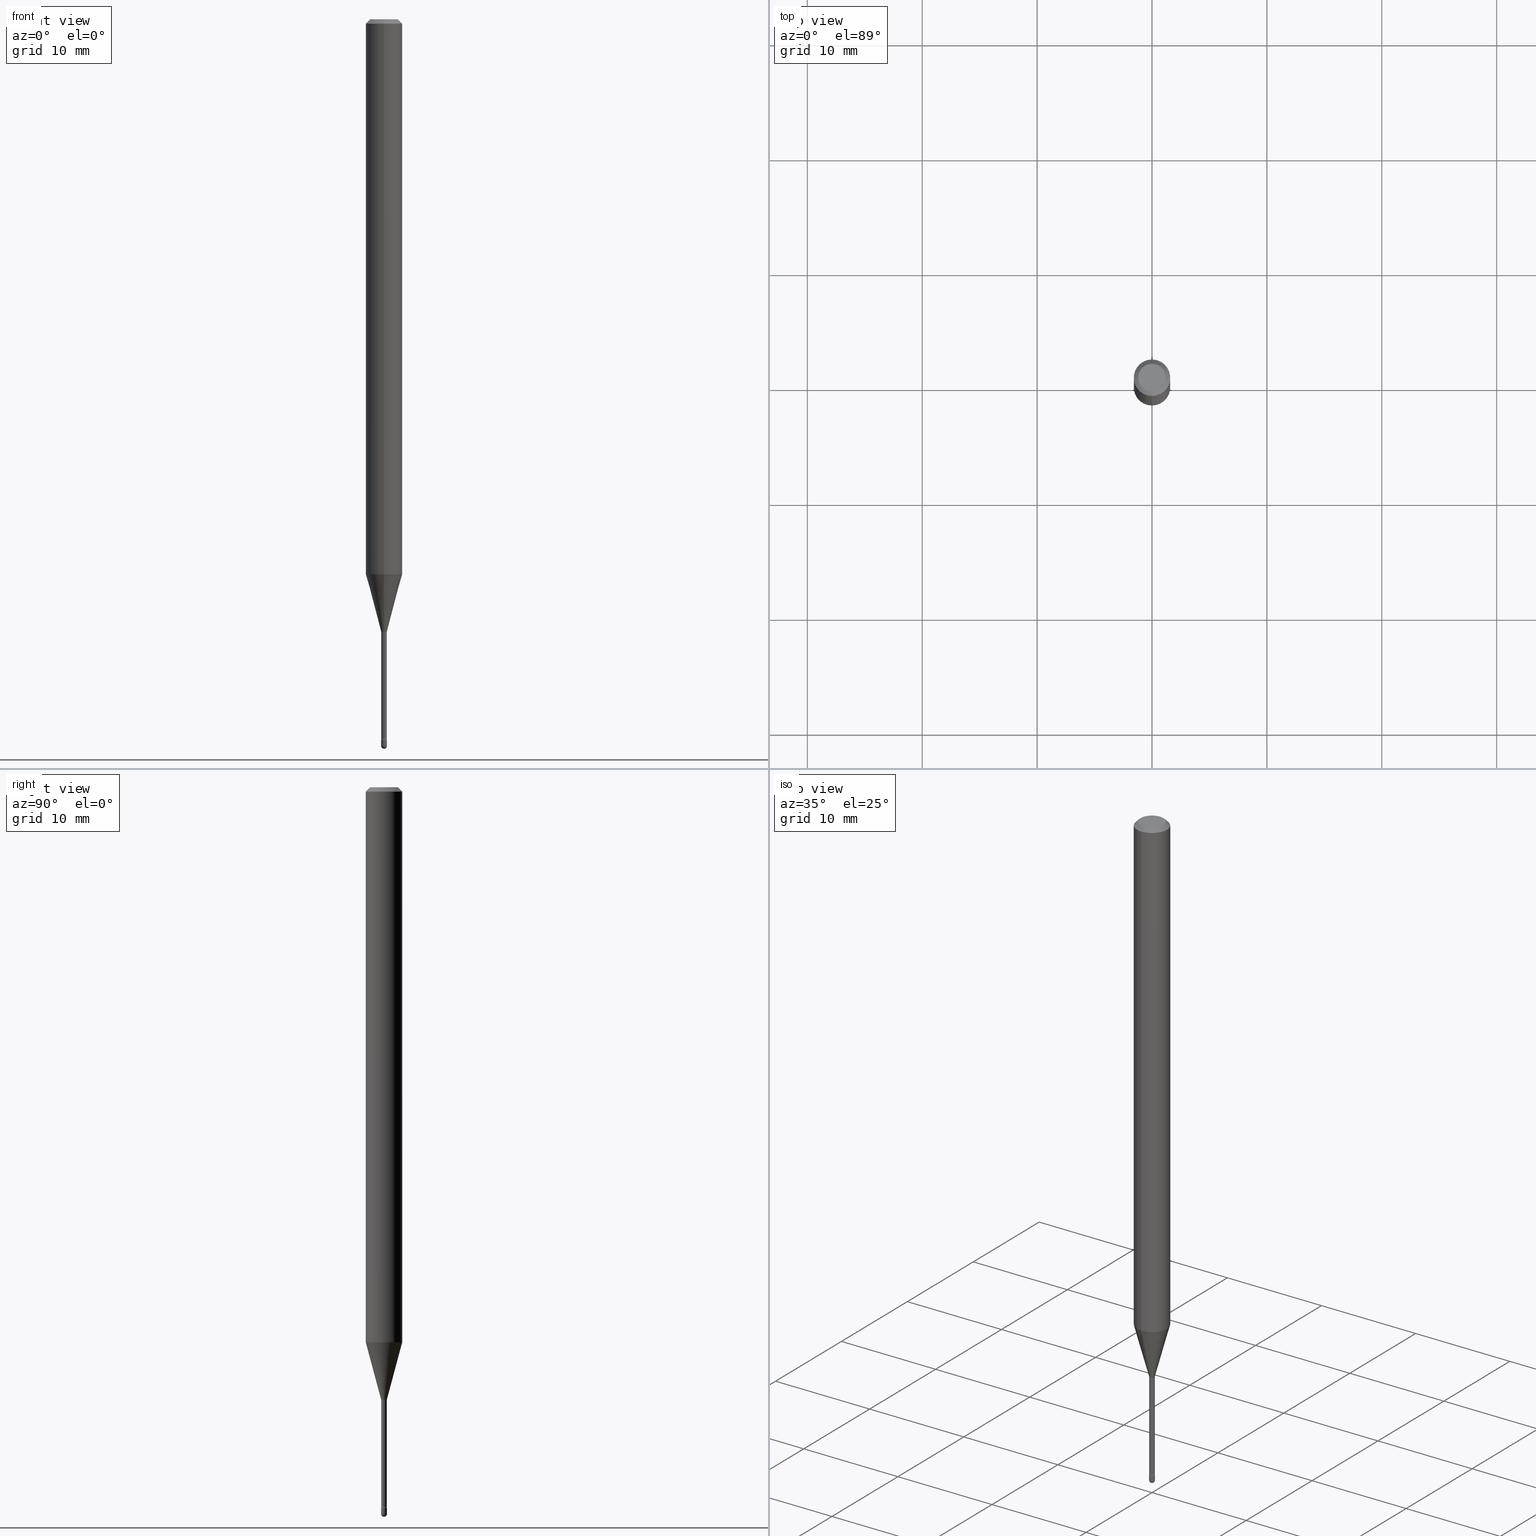
[diagram: canonical four-view strip — front | top / right | iso, engineering-drawing reading convention]
A machine part, canonical four-view strip (front | top / right | iso — engineering-drawing reading convention). The complete STEP part file that produces these views, byte-faithful:
ISO-10303-21;
HEADER;
FILE_DESCRIPTION (( 'STEP AP203' ),
    '1' );
FILE_NAME ('09422.STEP',
    '2024-04-09T22:58:47',
    ( '' ),
    ( '' ),
    'SwSTEP 2.0',
    'SolidWorks 2023',
    '' );
FILE_SCHEMA (( 'CONFIG_CONTROL_DESIGN' ));
ENDSEC;

DATA;
#1 = PLANE ( 'NONE',  #214 ) ;
#2 = ADVANCED_FACE ( 'NONE', ( #287 ), #88, .T. ) ;
#3 = CARTESIAN_POINT ( 'NONE',  ( -0.01000000000000000021, 7.105427357601002007E-17, -4.918935090254906272E-31 ) ) ;
#4 = VECTOR ( 'NONE', #510, 39.37007874015748143 ) ;
#5 = ADVANCED_FACE ( 'NONE', ( #208 ), #33, .F. ) ;
#6 = DIRECTION ( 'NONE',  ( -2.445514680004829566E-29, 3.491415644922369221E-15, 1.000000000000000000 ) ) ;
#7 = ORIENTED_EDGE ( 'NONE', *, *, #456, .T. ) ;
#8 = ADVANCED_BREP_SHAPE_REPRESENTATION ( '09422', ( #106, #111, #331 ), #453 ) ;
#9 = CARTESIAN_POINT ( 'NONE',  ( -1.703842893354847853E-16, -0.02440000000000863700, -2.465800000000000214 ) ) ;
#10 = EDGE_CURVE ( 'NONE', #562, #392, #493, .T. ) ;
#11 = ORIENTED_EDGE ( 'NONE', *, *, #309, .F. ) ;
#12 = CALENDAR_DATE ( 2024, 9, 4 ) ;
#13 = CARTESIAN_POINT ( 'NONE',  ( -4.287811248607203282E-16, -0.06250000000000005551, -0.01499999999999986587 ) ) ;
#14 = DIRECTION ( 'NONE',  ( -2.445514680004829566E-29, 3.491415644922369221E-15, 1.000000000000000000 ) ) ;
#15 = SECURITY_CLASSIFICATION ( '', '', #92 ) ;
#16 = FACE_OUTER_BOUND ( 'NONE', #295, .T. ) ;
#17 = ORIENTED_EDGE ( 'NONE', *, *, #239, .T. ) ;
#18 = DATE_TIME_ROLE ( 'creation_date' ) ;
#19 = CARTESIAN_POINT ( 'NONE',  ( 6.030036982291310238E-29, -8.609294685319429365E-15, -2.465800000000000214 ) ) ;
#20 = ORIENTED_EDGE ( 'NONE', *, *, #128, .F. ) ;
#21 = DIRECTION ( 'NONE',  ( -6.982962677686264344E-15, -1.000000000000000000, 0.000000000000000000 ) ) ;
#22 = CC_DESIGN_PERSON_AND_ORGANIZATION_ASSIGNMENT ( #495, #113, ( #45 ) ) ;
#23 = CIRCLE ( 'NONE', #178, 0.01000000000000000021 ) ;
#24 = CIRCLE ( 'NONE', #505, 0.009400000000000002104 ) ;
#25 = VECTOR ( 'NONE', #265, 39.37007874015748854 ) ;
#26 = FACE_OUTER_BOUND ( 'NONE', #134, .T. ) ;
#27 = DIRECTION ( 'NONE',  ( -2.445514680004829566E-29, 3.491415644922369221E-15, 1.000000000000000000 ) ) ;
#28 = ORIENTED_EDGE ( 'NONE', *, *, #162, .T. ) ;
#29 = LINE ( 'NONE', #201, #124 ) ;
#30 = EDGE_CURVE ( 'NONE', #144, #437, #294, .T. ) ;
#31 = CARTESIAN_POINT ( 'NONE',  ( -4.364351673553451266E-16, -0.06250000000000664746, -1.901828102118092945 ) ) ;
#32 = VERTEX_POINT ( 'NONE', #539 ) ;
#33 = PLANE ( 'NONE',  #457 ) ;
#34 = AXIS2_PLACEMENT_3D ( 'NONE', #46, #169, #535 ) ;
#35 = DIRECTION ( 'NONE',  ( -6.982962677686265922E-15, -1.000000000000000000, 0.000000000000000000 ) ) ;
#36 = PRODUCT_DEFINITION_FORMATION_WITH_SPECIFIED_SOURCE ( 'ANY', '', #492, .NOT_KNOWN. ) ;
#37 = CIRCLE ( 'NONE', #420, 0.01000000000000008347 ) ;
#38 = EDGE_CURVE ( 'NONE', #356, #562, #61, .T. ) ;
#39 = EDGE_LOOP ( 'NONE', ( #327, #553 ) ) ;
#40 = VERTEX_POINT ( 'NONE', #181 ) ;
#41 = FACE_OUTER_BOUND ( 'NONE', #288, .T. ) ;
#42 = EDGE_CURVE ( 'NONE', #58, #541, #256, .T. ) ;
#43 = DIRECTION ( 'NONE',  ( -7.105427357601000281E-15, -1.000000000000000000, 0.000000000000000000 ) ) ;
#44 = CARTESIAN_POINT ( 'NONE',  ( 6.089217327400989947E-29, -8.693788533719431716E-15, -2.489999999999999769 ) ) ;
#45 = PRODUCT_DEFINITION ( 'UNKNOWN', '', #36, #180 ) ;
#46 = CARTESIAN_POINT ( 'NONE',  ( 1.733724275255249028E-16, 0.02439999999999141814, -2.465800000000000214 ) ) ;
#47 = AXIS2_PLACEMENT_3D ( 'NONE', #252, #50, #382 ) ;
#48 = VERTEX_POINT ( 'NONE', #220 ) ;
#49 = VECTOR ( 'NONE', #522, 39.37007874015748143 ) ;
#50 = DIRECTION ( 'NONE',  ( -2.445514680004829566E-29, 3.491415644922369221E-15, 1.000000000000000000 ) ) ;
#51 = DIRECTION ( 'NONE',  ( -6.982962677686265922E-15, -1.000000000000000000, 3.491415644922369221E-15 ) ) ;
#52 = CARTESIAN_POINT ( 'NONE',  ( 3.668272020007264791E-31, -5.237123467383583267E-17, -0.01500000000000008271 ) ) ;
#53 = FACE_OUTER_BOUND ( 'NONE', #414, .T. ) ;
#54 = ORIENTED_EDGE ( 'NONE', *, *, #503, .T. ) ;
#55 = DIRECTION ( 'NONE',  ( 1.000000000000000000, -6.982962677686235945E-15, 0.000000000000000000 ) ) ;
#56 = ORIENTED_EDGE ( 'NONE', *, *, #206, .T. ) ;
#57 = CARTESIAN_POINT ( 'NONE',  ( 2.023886438444584858E-45, -2.888837706566762205E-31, -8.275015253278219790E-17 ) ) ;
#58 = VERTEX_POINT ( 'NONE', #102 ) ;
#59 = AXIS2_PLACEMENT_3D ( 'NONE', #107, #496, #179 ) ;
#60 = LOCAL_TIME ( 18, 58, 47.00000000000000000, #542 ) ;
#61 = LINE ( 'NONE', #484, #511 ) ;
#62 = ORIENTED_EDGE ( 'NONE', *, *, #110, .T. ) ;
#63 = COORDINATED_UNIVERSAL_TIME_OFFSET ( 5, 0, .BEHIND. ) ;
#64 = PERSON_AND_ORGANIZATION ( #474, #164 ) ;
#65 = APPROVAL_STATUS ( 'not_yet_approved' ) ;
#66 = APPLICATION_CONTEXT ( 'configuration controlled 3d designs of mechanical parts and assemblies' ) ;
#67 = APPROVAL_DATE_TIME ( #445, #378 ) ;
#68 = CIRCLE ( 'NONE', #142, 0.01000000000000000021 ) ;
#69 = EDGE_CURVE ( 'NONE', #526, #450, #135, .T. ) ;
#70 = APPROVAL ( #226, 'UNSPECIFIED' ) ;
#71 = ORIENTED_EDGE ( 'NONE', *, *, #324, .F. ) ;
#72 = EDGE_CURVE ( 'NONE', #437, #182, #148, .T. ) ;
#73 = CONICAL_SURFACE ( 'NONE', #261, 0.009911112605663983943, 0.2617993877991500740 ) ;
#74 = CIRCLE ( 'NONE', #155, 0.06250000000000000000 ) ;
#75 = CARTESIAN_POINT ( 'NONE',  ( 6.040421259611930153E-29, -8.623796642958253681E-15, -2.470000000000000195 ) ) ;
#76 = ORIENTED_EDGE ( 'NONE', *, *, #10, .F. ) ;
#77 = DIRECTION ( 'NONE',  ( -6.982962677686265922E-15, -1.000000000000000000, 3.483106191921935554E-15 ) ) ;
#78 = EDGE_CURVE ( 'NONE', #156, #160, #212, .T. ) ;
#79 = CARTESIAN_POINT ( 'NONE',  ( 3.840629472727447874E-16, 0.04749999999999999362, -2.485923956665947374E-16 ) ) ;
#80 = EDGE_LOOP ( 'NONE', ( #277, #444 ) ) ;
#81 = DIRECTION ( 'NONE',  ( -6.982962677686265922E-15, -1.000000000000000000, 0.000000000000000000 ) ) ;
#82 = CARTESIAN_POINT ( 'NONE',  ( -6.563984917025098705E-17, -0.009400000000000012512, 5.108927059535164015E-16 ) ) ;
#83 = DIRECTION ( 'NONE',  ( 6.982962677686265922E-15, 1.000000000000000000, 0.000000000000000000 ) ) ;
#84 = ORIENTED_EDGE ( 'NONE', *, *, #78, .T. ) ;
#85 = CIRCLE ( 'NONE', #176, 0.01500000000000002373 ) ;
#86 = DIRECTION ( 'NONE',  ( -2.445514680004829566E-29, 3.491415644922369221E-15, 1.000000000000000000 ) ) ;
#87 = CARTESIAN_POINT ( 'NONE',  ( 0.000000000000000000, 0.000000000000000000, 0.000000000000000000 ) ) ;
#88 = SPHERICAL_SURFACE ( 'NONE', #543, 0.01000000000000008347 ) ;
#89 = CARTESIAN_POINT ( 'NONE',  ( -7.105427357594942569E-17, -0.01000000000000873281, -2.489999999999999769 ) ) ;
#90 = ADVANCED_FACE ( 'NONE', ( #473 ), #1, .T. ) ;
#91 = ORIENTED_EDGE ( 'NONE', *, *, #411, .F. ) ;
#92 = SECURITY_CLASSIFICATION_LEVEL ( 'unclassified' ) ;
#93 = CARTESIAN_POINT ( 'NONE',  ( -1.169113584055446105E-44, 1.669184350826100908E-30, 4.780733988912460139E-16 ) ) ;
#94 = CARTESIAN_POINT ( 'NONE',  ( 6.040307951277287977E-29, -8.623958906942569995E-15, -2.470000000000000195 ) ) ;
#95 = LOCAL_TIME ( 18, 58, 47.00000000000000000, #141 ) ;
#96 = EDGE_LOOP ( 'NONE', ( #523, #363, #313, #500 ) ) ;
#97 = DIRECTION ( 'NONE',  ( -6.982962677686264344E-15, -1.000000000000000000, 0.000000000000000000 ) ) ;
#98 = CARTESIAN_POINT ( 'NONE',  ( -4.364351673553912750E-16, -0.06250000000000005551, -0.01499999999999986587 ) ) ;
#99 = CARTESIAN_POINT ( 'NONE',  ( -1.169113584055446105E-44, 1.669184350826100908E-30, 4.780733988912460139E-16 ) ) ;
#100 = CARTESIAN_POINT ( 'NONE',  ( 6.089217327400989947E-29, -8.693788533719431716E-15, -2.489999999999999769 ) ) ;
#101 = ORIENTED_EDGE ( 'NONE', *, *, #110, .F. ) ;
#102 = CARTESIAN_POINT ( 'NONE',  ( 0.01000000000000000021, -8.728703347107863365E-15, -2.489999999999999769 ) ) ;
#103 = CIRCLE ( 'NONE', #407, 0.01000000000000000021 ) ;
#104 = ORIENTED_EDGE ( 'NONE', *, *, #30, .F. ) ;
#105 = AXIS2_PLACEMENT_3D ( 'NONE', #518, #170, #514 ) ;
#106 = MANIFOLD_SOLID_BREP ( 'Body-Move/Copy2[1]', #390 ) ;
#107 = CARTESIAN_POINT ( 'NONE',  ( -1.169113584055446105E-44, 1.669184350826100908E-30, 4.780733988912460139E-16 ) ) ;
#108 = APPROVAL_ROLE ( '' ) ;
#109 = DIRECTION ( 'NONE',  ( -6.982962677686265922E-15, -1.000000000000000000, 3.491415644922369221E-15 ) ) ;
#110 = EDGE_CURVE ( 'NONE', #207, #541, #380, .T. ) ;
#111 = MANIFOLD_SOLID_BREP ( 'Body-Move/Copy2[2]', #368 ) ;
#112 = EDGE_LOOP ( 'NONE', ( #433, #177, #149, #423 ) ) ;
#113 = PERSON_AND_ORGANIZATION_ROLE ( 'creator' ) ;
#114 = EDGE_LOOP ( 'NONE', ( #301, #62 ) ) ;
#115 = AXIS2_PLACEMENT_3D ( 'NONE', #515, #137, #139 ) ;
#116 = ADVANCED_FACE ( 'NONE', ( #53 ), #308, .T. ) ;
#117 = AXIS2_PLACEMENT_3D ( 'NONE', #198, #325, #284 ) ;
#118 = ORIENTED_EDGE ( 'NONE', *, *, #555, .T. ) ;
#119 = CARTESIAN_POINT ( 'NONE',  ( 6.030150097955909922E-29, -8.609132697249580284E-15, -2.465800000000000214 ) ) ;
#120 = ORIENTED_EDGE ( 'NONE', *, *, #238, .T. ) ;
#121 = AXIS2_PLACEMENT_3D ( 'NONE', #428, #564, #525 ) ;
#122 = AXIS2_PLACEMENT_3D ( 'NONE', #52, #299, #253 ) ;
#123 = DIRECTION ( 'NONE',  ( -6.982962677686264344E-15, -1.000000000000000000, 0.000000000000000000 ) ) ;
#124 = VECTOR ( 'NONE', #557, 39.37007874015748143 ) ;
#125 = CARTESIAN_POINT ( 'NONE',  ( 6.089217327400989947E-29, -8.693788533719431716E-15, -2.489999999999999769 ) ) ;
#126 = CC_DESIGN_PERSON_AND_ORGANIZATION_ASSIGNMENT ( #193, #424, ( #36 ) ) ;
#127 = DIRECTION ( 'NONE',  ( -2.445514680004829566E-29, 3.491415644922369221E-15, 1.000000000000000000 ) ) ;
#128 = EDGE_CURVE ( 'NONE', #541, #207, #23, .T. ) ;
#129 =( NAMED_UNIT ( * ) PLANE_ANGLE_UNIT ( ) SI_UNIT ( $, .RADIAN. ) );
#130 = CARTESIAN_POINT ( 'NONE',  ( 4.650948542575521026E-29, -6.640072389688127985E-15, -1.901828102118093167 ) ) ;
#131 = CARTESIAN_POINT ( 'NONE',  ( -0.01000000000000000021, -8.587819446754991563E-15, -2.470000000000000195 ) ) ;
#132 = VECTOR ( 'NONE', #404, 39.37007874015748143 ) ;
#133 = DIRECTION ( 'NONE',  ( -2.445514680004829847E-29, 3.491415644922369221E-15, 1.000000000000000000 ) ) ;
#134 = EDGE_LOOP ( 'NONE', ( #469, #104, #372, #228 ) ) ;
#135 = CIRCLE ( 'NONE', #439, 0.01000000000000008347 ) ;
#136 = EDGE_CURVE ( 'NONE', #465, #403, #451, .T. ) ;
#137 = DIRECTION ( 'NONE',  ( -2.445514680004829566E-29, 3.491415644922369221E-15, 1.000000000000000000 ) ) ;
#138 = PERSON_AND_ORGANIZATION ( #474, #164 ) ;
#139 = DIRECTION ( 'NONE',  ( -6.982962677686265922E-15, -1.000000000000000000, 4.370956789862821150E-15 ) ) ;
#140 = ORIENTED_EDGE ( 'NONE', *, *, #38, .F. ) ;
#141 = COORDINATED_UNIVERSAL_TIME_OFFSET ( 5, 0, .BEHIND. ) ;
#142 = AXIS2_PLACEMENT_3D ( 'NONE', #75, #335, #35 ) ;
#143 = DIRECTION ( 'NONE',  ( -2.445468806185136597E-29, 3.491481338843145583E-15, 1.000000000000000000 ) ) ;
#144 = VERTEX_POINT ( 'NONE', #448 ) ;
#145 = CARTESIAN_POINT ( 'NONE',  ( 3.668272020007264791E-31, -5.237123467383583267E-17, -0.01500000000000008271 ) ) ;
#146 = DIRECTION ( 'NONE',  ( -2.445468806185136597E-29, 3.491481338843145583E-15, 1.000000000000000000 ) ) ;
#147 = ORIENTED_EDGE ( 'NONE', *, *, #72, .F. ) ;
#148 = LINE ( 'NONE', #225, #25 ) ;
#149 = ORIENTED_EDGE ( 'NONE', *, *, #183, .T. ) ;
#150 = DIRECTION ( 'NONE',  ( -2.445514680004829566E-29, 3.491415644922369221E-15, 1.000000000000000000 ) ) ;
#151 = AXIS2_PLACEMENT_3D ( 'NONE', #333, #127, #81 ) ;
#152 = ORIENTED_EDGE ( 'NONE', *, *, #381, .F. ) ;
#153 = AXIS2_PLACEMENT_3D ( 'NONE', #145, #172, #345 ) ;
#154 = CC_DESIGN_APPROVAL ( #378, ( #15 ) ) ;
#155 = AXIS2_PLACEMENT_3D ( 'NONE', #461, #458, #77 ) ;
#156 = VERTEX_POINT ( 'NONE', #249 ) ;
#157 = CIRCLE ( 'NONE', #115, 0.06250000000000000000 ) ;
#158 = EDGE_CURVE ( 'NONE', #144, #356, #430, .T. ) ;
#159 = DIRECTION ( 'NONE',  ( -6.982962677686265922E-15, -1.000000000000000000, 3.491415644922369221E-15 ) ) ;
#160 = VERTEX_POINT ( 'NONE', #89 ) ;
#161 = FACE_OUTER_BOUND ( 'NONE', #323, .T. ) ;
#162 = EDGE_CURVE ( 'NONE', #58, #450, #315, .T. ) ;
#163 = CARTESIAN_POINT ( 'NONE',  ( 5.140313774130382338E-29, -7.339005745148683013E-15, -2.101974787463810834 ) ) ;
#164 = ORGANIZATION ( 'UNSPECIFIED', 'UNSPECIFIED', '' ) ;
#165 = CARTESIAN_POINT ( 'NONE',  ( 5.140410199742781456E-29, -7.338867658183522042E-15, -2.101974787463810834 ) ) ;
#166 = ORIENTED_EDGE ( 'NONE', *, *, #324, .T. ) ;
#167 = ADVANCED_FACE ( 'NONE', ( #161 ), #73, .T. ) ;
#168 = EDGE_CURVE ( 'NONE', #392, #562, #74, .T. ) ;
#169 = DIRECTION ( 'NONE',  ( 1.000000000000000000, -7.105427357601001070E-15, 4.926314704023584056E-29 ) ) ;
#170 = DIRECTION ( 'NONE',  ( -2.445514680004829566E-29, 3.491415644922369221E-15, 1.000000000000000000 ) ) ;
#171 = CONICAL_SURFACE ( 'NONE', #438, 0.009911112605663983943, 0.2617993877991500740 ) ;
#172 = DIRECTION ( 'NONE',  ( 2.445514680004829566E-29, -3.491415644922369221E-15, -1.000000000000000000 ) ) ;
#173 = PERSON_AND_ORGANIZATION_ROLE ( 'classification_officer' ) ;
#174 = ORIENTED_EDGE ( 'NONE', *, *, #411, .T. ) ;
#175 = DIRECTION ( 'NONE',  ( 1.000000000000000000, -6.982962677686265922E-15, 4.876176775795935793E-29 ) ) ;
#176 = AXIS2_PLACEMENT_3D ( 'NONE', #269, #197, #552 ) ;
#177 = ORIENTED_EDGE ( 'NONE', *, *, #559, .F. ) ;
#178 = AXIS2_PLACEMENT_3D ( 'NONE', #355, #143, #436 ) ;
#179 = DIRECTION ( 'NONE',  ( -6.982962677686265922E-15, -1.000000000000000000, 3.491415644922366460E-15 ) ) ;
#180 = DESIGN_CONTEXT ( 'detailed design', #546, 'design' ) ;
#181 = CARTESIAN_POINT ( 'NONE',  ( 7.105427357607040490E-17, 0.009999999999991376898, -2.470000000000000195 ) ) ;
#182 = VERTEX_POINT ( 'NONE', #412 ) ;
#183 = EDGE_CURVE ( 'NONE', #403, #392, #29, .T. ) ;
#184 = EDGE_CURVE ( 'NONE', #32, #410, #340, .T. ) ;
#185 = ORIENTED_EDGE ( 'NONE', *, *, #365, .T. ) ;
#186 = PERSON_AND_ORGANIZATION ( #474, #164 ) ;
#187 = DIRECTION ( 'NONE',  ( -4.851104656540964275E-15, -0.7071067811865500152, -0.7071067811865450192 ) ) ;
#188 = VECTOR ( 'NONE', #477, 39.37007874015748143 ) ;
#189 = LOCAL_TIME ( 18, 58, 47.00000000000000000, #361 ) ;
#190 = APPLICATION_PROTOCOL_DEFINITION ( 'international standard', 'config_control_design', 1994, #546 ) ;
#191 = DIRECTION ( 'NONE',  ( -2.445514680004829566E-29, 3.491415644922369221E-15, 1.000000000000000000 ) ) ;
#192 = ORIENTED_EDGE ( 'NONE', *, *, #258, .T. ) ;
#193 = PERSON_AND_ORGANIZATION ( #474, #164 ) ;
#194 = ORIENTED_EDGE ( 'NONE', *, *, #184, .F. ) ;
#195 = DIRECTION ( 'NONE',  ( -6.982962677686265922E-15, -1.000000000000000000, 0.000000000000000000 ) ) ;
#196 = AXIS2_PLACEMENT_3D ( 'NONE', #163, #499, #449 ) ;
#197 = DIRECTION ( 'NONE',  ( 1.000000000000000000, -7.105427357601001070E-15, 4.926314704023584056E-29 ) ) ;
#198 = CARTESIAN_POINT ( 'NONE',  ( 6.089217327400989947E-29, -8.693788533719431716E-15, -2.489999999999999769 ) ) ;
#199 = FACE_OUTER_BOUND ( 'NONE', #39, .T. ) ;
#200 = DIRECTION ( 'NONE',  ( -6.982962677686265922E-15, -1.000000000000000000, 4.370956789862821150E-15 ) ) ;
#201 = CARTESIAN_POINT ( 'NONE',  ( 4.364351673553919652E-16, 0.06249999999999995143, -0.01500000000000030129 ) ) ;
#202 = APPROVAL_PERSON_ORGANIZATION ( #64, #378, #108 ) ;
#203 = DIRECTION ( 'NONE',  ( -2.445468806185136597E-29, 3.491481338843145583E-15, 1.000000000000000000 ) ) ;
#204 =( NAMED_UNIT ( * ) SI_UNIT ( $, .STERADIAN. ) SOLID_ANGLE_UNIT ( ) );
#205 = DIRECTION ( 'NONE',  ( -6.982962677686265922E-15, -1.000000000000000000, 0.000000000000000000 ) ) ;
#206 = EDGE_CURVE ( 'NONE', #160, #58, #103, .T. ) ;
#207 = VERTEX_POINT ( 'NONE', #131 ) ;
#208 = FACE_OUTER_BOUND ( 'NONE', #80, .T. ) ;
#209 = DIMENSIONAL_EXPONENTS ( 1.000000000000000000, 0.000000000000000000, 0.000000000000000000, 0.000000000000000000, 0.000000000000000000, 0.000000000000000000, 0.000000000000000000 ) ;
#210 = CARTESIAN_POINT ( 'NONE',  ( 3.316907271900976096E-16, 0.04749999999999999362, 3.181938004541935619E-17 ) ) ;
#211 = CYLINDRICAL_SURFACE ( 'NONE', #489, 0.01000000000000000021 ) ;
#212 = CIRCLE ( 'NONE', #264, 0.01000000000000000021 ) ;
#213 = AXIS2_PLACEMENT_3D ( 'NONE', #286, #240, #159 ) ;
#214 = AXIS2_PLACEMENT_3D ( 'NONE', #94, #254, #432 ) ;
#215 = CARTESIAN_POINT ( 'NONE',  ( 6.089217327400989947E-29, -8.693788533719431716E-15, -2.489999999999999769 ) ) ;
#216 = CC_DESIGN_PERSON_AND_ORGANIZATION_ASSIGNMENT ( #421, #347, ( #492 ) ) ;
#217 = CARTESIAN_POINT ( 'NONE',  ( -6.982962677680226008E-17, -0.01000000000000862178, -2.470000000000000195 ) ) ;
#218 = CARTESIAN_POINT ( 'NONE',  ( 0.000000000000000000, 0.000000000000000000, 0.000000000000000000 ) ) ;
#219 = VERTEX_POINT ( 'NONE', #470 ) ;
#220 = CARTESIAN_POINT ( 'NONE',  ( 6.679101716150982958E-17, 0.009399999999992664224, -2.101974787463810834 ) ) ;
#221 = CONICAL_SURFACE ( 'NONE', #122, 0.06250000000000000000, 0.7853981633974483900 ) ;
#222 = LOCAL_TIME ( 18, 58, 47.00000000000000000, #63 ) ;
#223 = EDGE_LOOP ( 'NONE', ( #305, #84, #56, #266, #101 ) ) ;
#224 = ADVANCED_FACE ( 'NONE', ( #524 ), #211, .T. ) ;
#225 = CARTESIAN_POINT ( 'NONE',  ( 7.042269065260031004E-17, 0.009911112605656658206, -2.098092501787272912 ) ) ;
#226 = APPROVAL_STATUS ( 'not_yet_approved' ) ;
#227 = DATE_TIME_ROLE ( 'classification_date' ) ;
#228 = ORIENTED_EDGE ( 'NONE', *, *, #540, .T. ) ;
#229 = AXIS2_PLACEMENT_3D ( 'NONE', #119, #377, #195 ) ;
#230 = ADVANCED_FACE ( 'NONE', ( #41 ), #279, .F. ) ;
#231 = LOCAL_TIME ( 18, 58, 47.00000000000000000, #248 ) ;
#232 = APPROVAL_ROLE ( '' ) ;
#233 = APPROVAL_DATE_TIME ( #394, #70 ) ;
#234 = ADVANCED_FACE ( 'NONE', ( #472 ), #388, .T. ) ;
#235 = FACE_OUTER_BOUND ( 'NONE', #283, .T. ) ;
#236 = AXIS2_PLACEMENT_3D ( 'NONE', #125, #242, #413 ) ;
#237 = AXIS2_PLACEMENT_3D ( 'NONE', #57, #6, #312 ) ;
#238 = EDGE_CURVE ( 'NONE', #526, #160, #37, .T. ) ;
#239 = EDGE_CURVE ( 'NONE', #410, #48, #342, .T. ) ;
#240 = DIRECTION ( 'NONE',  ( -2.445514680004829566E-29, 3.491415644922369221E-15, 1.000000000000000000 ) ) ;
#241 = ORIENTED_EDGE ( 'NONE', *, *, #376, .F. ) ;
#242 = DIRECTION ( 'NONE',  ( -2.445468806185136597E-29, 3.491481338843145583E-15, 1.000000000000000000 ) ) ;
#243 = CARTESIAN_POINT ( 'NONE',  ( 6.089217327400989947E-29, -8.693788533719431716E-15, -2.489999999999999769 ) ) ;
#244 = TOROIDAL_SURFACE ( 'NONE', #196, 0.02440000000000000155, 0.01500000000000002373 ) ;
#245 = CARTESIAN_POINT ( 'NONE',  ( 0.000000000000000000, 0.000000000000000000, 0.000000000000000000 ) ) ;
#246 = LINE ( 'NONE', #520, #426 ) ;
#247 = FACE_OUTER_BOUND ( 'NONE', #112, .T. ) ;
#248 = COORDINATED_UNIVERSAL_TIME_OFFSET ( 5, 0, .BEHIND. ) ;
#249 = CARTESIAN_POINT ( 'NONE',  ( -0.01000000000000000021, -8.587819446754991563E-15, -2.489999999999999769 ) ) ;
#250 = FACE_OUTER_BOUND ( 'NONE', #387, .T. ) ;
#251 = PERSON_AND_ORGANIZATION ( #474, #164 ) ;
#252 = CARTESIAN_POINT ( 'NONE',  ( 6.030036982291310238E-29, -8.609294685319429365E-15, -2.465800000000000214 ) ) ;
#253 = DIRECTION ( 'NONE',  ( 6.982962677686265922E-15, 1.000000000000000000, -3.483106191921935554E-15 ) ) ;
#254 = DIRECTION ( 'NONE',  ( -2.438088387897960049E-29, 3.491481338843145188E-15, 1.000000000000000000 ) ) ;
#255 = DIRECTION ( 'NONE',  ( 6.982962677686265922E-15, 1.000000000000000000, 0.000000000000000000 ) ) ;
#256 = LINE ( 'NONE', #434, #49 ) ;
#257 = LINE ( 'NONE', #13, #375 ) ;
#258 = EDGE_CURVE ( 'NONE', #356, #182, #157, .T. ) ;
#259 = CARTESIAN_POINT ( 'NONE',  ( 6.040307951277287977E-29, -8.623958906942569995E-15, -2.470000000000000195 ) ) ;
#260 = ADVANCED_FACE ( 'NONE', ( #247 ), #221, .T. ) ;
#261 = AXIS2_PLACEMENT_3D ( 'NONE', #504, #374, #123 ) ;
#262 = CIRCLE ( 'NONE', #236, 0.01000000000000000021 ) ;
#263 = DIRECTION ( 'NONE',  ( -2.445514680004829566E-29, 3.491415644922369221E-15, 1.000000000000000000 ) ) ;
#264 = AXIS2_PLACEMENT_3D ( 'NONE', #100, #536, #300 ) ;
#265 = DIRECTION ( 'NONE',  ( 1.839019923739598738E-15, 0.2588190451025247363, 0.9659258262890673130 ) ) ;
#266 = ORIENTED_EDGE ( 'NONE', *, *, #42, .T. ) ;
#267 = CC_DESIGN_DATE_AND_TIME_ASSIGNMENT ( #554, #227, ( #15 ) ) ;
#268 = ORIENTED_EDGE ( 'NONE', *, *, #330, .T. ) ;
#269 = CARTESIAN_POINT ( 'NONE',  ( 1.733724275255158309E-16, 0.02439999999999266367, -2.101974787463810834 ) ) ;
#270 = ORIENTED_EDGE ( 'NONE', *, *, #69, .T. ) ;
#271 = DATE_AND_TIME ( #400, #60 ) ;
#272 = CYLINDRICAL_SURFACE ( 'NONE', #427, 0.009400000000000012512 ) ;
#273 = SHAPE_DEFINITION_REPRESENTATION ( #311, #8 ) ;
#274 = CIRCLE ( 'NONE', #34, 0.01500000000000000638 ) ;
#275 = ORIENTED_EDGE ( 'NONE', *, *, #381, .T. ) ;
#276 = DIRECTION ( 'NONE',  ( -6.982962677686265922E-15, -1.000000000000000000, 0.000000000000000000 ) ) ;
#277 = ORIENTED_EDGE ( 'NONE', *, *, #365, .F. ) ;
#278 = CYLINDRICAL_SURFACE ( 'NONE', #513, 0.06250000000000000000 ) ;
#279 = TOROIDAL_SURFACE ( 'NONE', #47, 0.02440000000000002583, 0.01500000000000000291 ) ;
#280 = TOROIDAL_SURFACE ( 'NONE', #213, 0.02440000000000000155, 0.01500000000000002373 ) ;
#281 = AXIS2_PLACEMENT_3D ( 'NONE', #396, #14, #565 ) ;
#282 = CARTESIAN_POINT ( 'NONE',  ( 4.440892098501093562E-16, 0.06249999999999993755, -0.01500000000000030129 ) ) ;
#283 = EDGE_LOOP ( 'NONE', ( #147, #174, #528, #152 ) ) ;
#284 = DIRECTION ( 'NONE',  ( 1.000000000000000000, -6.982962677686235945E-15, 0.000000000000000000 ) ) ;
#285 = PLANE ( 'NONE',  #558 ) ;
#286 = CARTESIAN_POINT ( 'NONE',  ( 5.140313774130382338E-29, -7.339005745148683013E-15, -2.101974787463810834 ) ) ;
#287 = FACE_OUTER_BOUND ( 'NONE', #357, .T. ) ;
#288 = EDGE_LOOP ( 'NONE', ( #566, #194, #166, #185 ) ) ;
#289 = DIRECTION ( 'NONE',  ( -2.445514680004829566E-29, 3.491415644922369221E-15, 1.000000000000000000 ) ) ;
#290 = ORIENTED_EDGE ( 'NONE', *, *, #78, .F. ) ;
#291 = ORIENTED_EDGE ( 'NONE', *, *, #168, .F. ) ;
#292 = AXIS2_PLACEMENT_3D ( 'NONE', #165, #416, #205 ) ;
#293 =( CONVERSION_BASED_UNIT ( 'INCH', #343 ) LENGTH_UNIT ( ) NAMED_UNIT ( #209 ) );
#294 = CIRCLE ( 'NONE', #429, 0.009911112605663983943 ) ;
#295 = EDGE_LOOP ( 'NONE', ( #551, #17, #537, #485 ) ) ;
#296 = EDGE_LOOP ( 'NONE', ( #192, #54, #76, #140 ) ) ;
#297 = CARTESIAN_POINT ( 'NONE',  ( 5.140410199742781456E-29, -7.338867658183522042E-15, -2.101974787463810834 ) ) ;
#298 = ORIENTED_EDGE ( 'NONE', *, *, #158, .F. ) ;
#299 = DIRECTION ( 'NONE',  ( 2.445514680004829566E-29, -3.491415644922369221E-15, -1.000000000000000000 ) ) ;
#300 = DIRECTION ( 'NONE',  ( 1.000000000000000000, -6.982962677686235945E-15, 0.000000000000000000 ) ) ;
#301 = ORIENTED_EDGE ( 'NONE', *, *, #128, .T. ) ;
#302 = CALENDAR_DATE ( 2024, 9, 4 ) ;
#303 = CIRCLE ( 'NONE', #352, 0.01499999999999999771 ) ;
#304 = FACE_OUTER_BOUND ( 'NONE', #96, .T. ) ;
#305 = ORIENTED_EDGE ( 'NONE', *, *, #555, .F. ) ;
#306 = DIRECTION ( 'NONE',  ( -2.445514680004829566E-29, 3.491415644922369221E-15, 1.000000000000000000 ) ) ;
#307 = APPROVAL_STATUS ( 'not_yet_approved' ) ;
#308 = CYLINDRICAL_SURFACE ( 'NONE', #545, 0.01000000000000000021 ) ;
#309 = EDGE_CURVE ( 'NONE', #144, #219, #466, .T. ) ;
#310 = ORIENTED_EDGE ( 'NONE', *, *, #72, .T. ) ;
#311 = PRODUCT_DEFINITION_SHAPE ( 'NONE', 'NONE',  #45 ) ;
#312 = DIRECTION ( 'NONE',  ( -6.982962677686266711E-15, -1.000000000000000000, 3.491415644922368827E-15 ) ) ;
#313 = ORIENTED_EDGE ( 'NONE', *, *, #402, .T. ) ;
#314 = ORIENTED_EDGE ( 'NONE', *, *, #183, .F. ) ;
#315 = CIRCLE ( 'NONE', #117, 0.01000000000000000021 ) ;
#316 = ADVANCED_FACE ( 'NONE', ( #304 ), #479, .T. ) ;
#317 = FACE_OUTER_BOUND ( 'NONE', #351, .T. ) ;
#318 = CC_DESIGN_DATE_AND_TIME_ASSIGNMENT ( #271, #18, ( #45 ) ) ;
#319 = ORIENTED_EDGE ( 'NONE', *, *, #397, .T. ) ;
#320 = APPROVAL_DATE_TIME ( #358, #350 ) ;
#321 = ADVANCED_FACE ( 'NONE', ( #16 ), #272, .T. ) ;
#322 = TOROIDAL_SURFACE ( 'NONE', #529, 0.02440000000000002583, 0.01500000000000000291 ) ;
#323 = EDGE_LOOP ( 'NONE', ( #454, #310, #415, #298 ) ) ;
#324 = EDGE_CURVE ( 'NONE', #32, #482, #303, .T. ) ;
#325 = DIRECTION ( 'NONE',  ( -2.445468806185136597E-29, 3.491481338843145583E-15, 1.000000000000000000 ) ) ;
#326 = CARTESIAN_POINT ( 'NONE',  ( 2.572559502513548516E-16, 0.009911112605656658206, -2.098092501787272912 ) ) ;
#327 = ORIENTED_EDGE ( 'NONE', *, *, #559, .T. ) ;
#328 = DIRECTION ( 'NONE',  ( 1.000000000000000000, 0.000000000000000000, 0.000000000000000000 ) ) ;
#329 = CARTESIAN_POINT ( 'NONE',  ( 5.130916013128835903E-29, -7.325312985234399922E-15, -2.098092501787272912 ) ) ;
#330 = EDGE_CURVE ( 'NONE', #465, #562, #257, .T. ) ;
#331 = AXIS2_PLACEMENT_3D ( 'NONE', #87, #501, #328 ) ;
#332 = ADVANCED_FACE ( 'NONE', ( #317 ), #322, .F. ) ;
#333 = CARTESIAN_POINT ( 'NONE',  ( 6.030150097955909922E-29, -8.609132697249580284E-15, -2.465800000000000214 ) ) ;
#334 = CARTESIAN_POINT ( 'NONE',  ( 0.01000000000000000021, -8.693788533719433294E-15, -2.470000000000000195 ) ) ;
#335 = DIRECTION ( 'NONE',  ( -2.445514680004829566E-29, 3.491415644922369221E-15, 1.000000000000000000 ) ) ;
#336 = EDGE_CURVE ( 'NONE', #437, #48, #85, .T. ) ;
#337 = ORIENTED_EDGE ( 'NONE', *, *, #238, .F. ) ;
#338 = DIRECTION ( 'NONE',  ( -1.000000000000000000, 6.982962677686265922E-15, -4.883557194083112340E-29 ) ) ;
#339 = EDGE_LOOP ( 'NONE', ( #399, #275, #560, #291 ) ) ;
#340 = CIRCLE ( 'NONE', #151, 0.009400000000000024655 ) ;
#341 = CIRCLE ( 'NONE', #105, 0.04749999999999999362 ) ;
#342 = LINE ( 'NONE', #519, #4 ) ;
#343 = LENGTH_MEASURE_WITH_UNIT ( LENGTH_MEASURE( 0.02539999999999999897 ), #354 );
#344 = AXIS2_PLACEMENT_3D ( 'NONE', #259, #146, #527 ) ;
#345 = DIRECTION ( 'NONE',  ( 6.982962677686265922E-15, 1.000000000000000000, -3.483106191921935554E-15 ) ) ;
#346 = LINE ( 'NONE', #3, #188 ) ;
#347 = PERSON_AND_ORGANIZATION_ROLE ( 'design_owner' ) ;
#348 = DIRECTION ( 'NONE',  ( -2.445514680004829847E-29, 3.491415644922369221E-15, 1.000000000000000000 ) ) ;
#349 = DIRECTION ( 'NONE',  ( -1.000000000000000000, 7.105427357601001070E-15, -4.926315508542082329E-29 ) ) ;
#350 = APPROVAL ( #65, 'UNSPECIFIED' ) ;
#351 = EDGE_LOOP ( 'NONE', ( #241, #507, #319, #71 ) ) ;
#352 = AXIS2_PLACEMENT_3D ( 'NONE', #9, #359, #483 ) ;
#353 = AXIS2_PLACEMENT_3D ( 'NONE', #93, #534, #51 ) ;
#354 =( LENGTH_UNIT ( ) NAMED_UNIT ( * ) SI_UNIT ( $, .METRE. ) );
#355 = CARTESIAN_POINT ( 'NONE',  ( 6.040307951277287977E-29, -8.623958906942569995E-15, -2.470000000000000195 ) ) ;
#356 = VERTEX_POINT ( 'NONE', #31 ) ;
#357 = EDGE_LOOP ( 'NONE', ( #337, #270, #468, #362 ) ) ;
#358 = DATE_AND_TIME ( #12, #222 ) ;
#359 = DIRECTION ( 'NONE',  ( -1.000000000000000000, 6.982962677686265922E-15, -4.883557194083112340E-29 ) ) ;
#360 = AXIS2_PLACEMENT_3D ( 'NONE', #480, #338, #255 ) ;
#361 = COORDINATED_UNIVERSAL_TIME_OFFSET ( 5, 0, .BEHIND. ) ;
#362 = ORIENTED_EDGE ( 'NONE', *, *, #206, .F. ) ;
#363 = ORIENTED_EDGE ( 'NONE', *, *, #376, .T. ) ;
#364 = EDGE_CURVE ( 'NONE', #48, #219, #417, .T. ) ;
#365 = EDGE_CURVE ( 'NONE', #482, #40, #68, .T. ) ;
#366 = DIRECTION ( 'NONE',  ( -2.445514680004829566E-29, 3.491415644922369221E-15, 1.000000000000000000 ) ) ;
#367 = AXIS2_PLACEMENT_3D ( 'NONE', #556, #289, #276 ) ;
#368 = CLOSED_SHELL ( 'NONE', ( #395, #321, #332, #521, #234, #167, #419, #446, #260, #548, #5, #230, #316, #435 ) ) ;
#369 = CARTESIAN_POINT ( 'NONE',  ( 5.130916013128835903E-29, -7.325312985234399922E-15, -2.098092501787272912 ) ) ;
#370 = DIRECTION ( 'NONE',  ( -1.807323732225328562E-15, -0.2588190451025179639, 0.9659258262890690894 ) ) ;
#371 = DIRECTION ( 'NONE',  ( -6.982962677686265922E-15, -1.000000000000000000, 3.491415644922369221E-15 ) ) ;
#372 = ORIENTED_EDGE ( 'NONE', *, *, #309, .T. ) ;
#373 = APPLICATION_PROTOCOL_DEFINITION ( 'international standard', 'config_control_design', 1994, #66 ) ;
#374 = DIRECTION ( 'NONE',  ( -2.445514680004829566E-29, 3.491415644922369221E-15, 1.000000000000000000 ) ) ;
#375 = VECTOR ( 'NONE', #187, 39.37007874015748143 ) ;
#376 = EDGE_CURVE ( 'NONE', #410, #32, #408, .T. ) ;
#377 = DIRECTION ( 'NONE',  ( -2.445514680004829566E-29, 3.491415644922369221E-15, 1.000000000000000000 ) ) ;
#378 = APPROVAL ( #307, 'UNSPECIFIED' ) ;
#379 = SPHERICAL_SURFACE ( 'NONE', #360, 0.01000000000000008347 ) ;
#380 = CIRCLE ( 'NONE', #344, 0.01000000000000000021 ) ;
#381 = EDGE_CURVE ( 'NONE', #182, #356, #398, .T. ) ;
#382 = DIRECTION ( 'NONE',  ( -6.982962677686265922E-15, -1.000000000000000000, 3.491415644922369221E-15 ) ) ;
#383 = DIRECTION ( 'NONE',  ( -2.445468806185136597E-29, 3.491481338843145583E-15, 1.000000000000000000 ) ) ;
#384 = ORIENTED_EDGE ( 'NONE', *, *, #42, .F. ) ;
#385 = CARTESIAN_POINT ( 'NONE',  ( -3.773273898774340269E-16, -0.04749999999999999362, 8.309209060103030462E-17 ) ) ;
#386 = DIRECTION ( 'NONE',  ( 1.000000000000000000, -6.982962677686265922E-15, 4.883557194083112340E-29 ) ) ;
#387 = EDGE_LOOP ( 'NONE', ( #517, #120, #290, #405 ) ) ;
#388 = CYLINDRICAL_SURFACE ( 'NONE', #353, 0.06250000000000000000 ) ;
#389 = AXIS2_PLACEMENT_3D ( 'NONE', #130, #452, #200 ) ;
#390 = CLOSED_SHELL ( 'NONE', ( #116, #509, #90, #2, #224 ) ) ;
#391 = UNCERTAINTY_MEASURE_WITH_UNIT (LENGTH_MEASURE( 1.000000000000000082E-05 ), #293, 'distance_accuracy_value', 'NONE');
#392 = VERTEX_POINT ( 'NONE', #282 ) ;
#393 = APPROVAL_ROLE ( '' ) ;
#394 = DATE_AND_TIME ( #406, #231 ) ;
#395 = ADVANCED_FACE ( 'NONE', ( #459 ), #280, .F. ) ;
#396 = CARTESIAN_POINT ( 'NONE',  ( 3.668272020007264791E-31, -5.237123467383583267E-17, -0.01500000000000008271 ) ) ;
#397 = EDGE_CURVE ( 'NONE', #40, #482, #498, .T. ) ;
#398 = CIRCLE ( 'NONE', #389, 0.06250000000000000000 ) ;
#399 = ORIENTED_EDGE ( 'NONE', *, *, #503, .F. ) ;
#400 = CALENDAR_DATE ( 2024, 9, 4 ) ;
#401 = DIRECTION ( 'NONE',  ( -6.982962677686265922E-15, -1.000000000000000000, 3.491415644922366460E-15 ) ) ;
#402 = EDGE_CURVE ( 'NONE', #32, #219, #462, .T. ) ;
#403 = VERTEX_POINT ( 'NONE', #79 ) ;
#404 = DIRECTION ( 'NONE',  ( -2.445514680004829847E-29, 3.491415644922369221E-15, 1.000000000000000000 ) ) ;
#405 = ORIENTED_EDGE ( 'NONE', *, *, #456, .F. ) ;
#406 = CALENDAR_DATE ( 2024, 9, 4 ) ;
#407 = AXIS2_PLACEMENT_3D ( 'NONE', #243, #203, #55 ) ;
#408 = CIRCLE ( 'NONE', #229, 0.009400000000000024655 ) ;
#409 = CARTESIAN_POINT ( 'NONE',  ( -1.169113584055446105E-44, 1.669184350826100908E-30, 4.780733988912460139E-16 ) ) ;
#410 = VERTEX_POINT ( 'NONE', #464 ) ;
#411 = EDGE_CURVE ( 'NONE', #437, #144, #491, .T. ) ;
#412 = CARTESIAN_POINT ( 'NONE',  ( 4.440892098501090604E-16, 0.06249999999999335948, -1.901828102118093389 ) ) ;
#413 = DIRECTION ( 'NONE',  ( 1.000000000000000000, -6.982962677686235945E-15, 0.000000000000000000 ) ) ;
#414 = EDGE_LOOP ( 'NONE', ( #7, #118, #20, #384, #28 ) ) ;
#415 = ORIENTED_EDGE ( 'NONE', *, *, #258, .F. ) ;
#416 = DIRECTION ( 'NONE',  ( -2.445514680004829566E-29, 3.491415644922369221E-15, 1.000000000000000000 ) ) ;
#417 = CIRCLE ( 'NONE', #292, 0.009400000000000002104 ) ;
#418 = ORIENTED_EDGE ( 'NONE', *, *, #10, .T. ) ;
#419 = ADVANCED_FACE ( 'NONE', ( #235 ), #171, .T. ) ;
#420 = AXIS2_PLACEMENT_3D ( 'NONE', #215, #349, #43 ) ;
#421 = PERSON_AND_ORGANIZATION ( #474, #164 ) ;
#422 = DIRECTION ( 'NONE',  ( -2.445468806185136597E-29, 3.491481338843145583E-15, 1.000000000000000000 ) ) ;
#423 = ORIENTED_EDGE ( 'NONE', *, *, #168, .T. ) ;
#424 = PERSON_AND_ORGANIZATION_ROLE ( 'creator' ) ;
#425 = DIRECTION ( 'NONE',  ( -6.982962677686265922E-15, -1.000000000000000000, 0.000000000000000000 ) ) ;
#426 = VECTOR ( 'NONE', #133, 39.37007874015748143 ) ;
#427 = AXIS2_PLACEMENT_3D ( 'NONE', #99, #306, #401 ) ;
#428 = CARTESIAN_POINT ( 'NONE',  ( -1.703842893354934874E-16, -0.02440000000000733943, -2.101974787463810834 ) ) ;
#429 = AXIS2_PLACEMENT_3D ( 'NONE', #481, #263, #97 ) ;
#430 = LINE ( 'NONE', #490, #563 ) ;
#431 = FACE_OUTER_BOUND ( 'NONE', #549, .T. ) ;
#432 = DIRECTION ( 'NONE',  ( 1.000000000000000000, -6.982962677686265922E-15, 4.876176775795935793E-29 ) ) ;
#433 = ORIENTED_EDGE ( 'NONE', *, *, #330, .F. ) ;
#434 = CARTESIAN_POINT ( 'NONE',  ( 0.01000000000000000021, -6.982962677686265724E-17, 4.876176775795935968E-31 ) ) ;
#435 = ADVANCED_FACE ( 'NONE', ( #26 ), #244, .F. ) ;
#436 = DIRECTION ( 'NONE',  ( 1.000000000000000000, -6.982962677686235945E-15, 0.000000000000000000 ) ) ;
#437 = VERTEX_POINT ( 'NONE', #326 ) ;
#438 = AXIS2_PLACEMENT_3D ( 'NONE', #369, #366, #550 ) ;
#439 = AXIS2_PLACEMENT_3D ( 'NONE', #440, #386, #442 ) ;
#440 = CARTESIAN_POINT ( 'NONE',  ( 6.089217327400989947E-29, -8.693788533719431716E-15, -2.489999999999999769 ) ) ;
#441 = PERSON_AND_ORGANIZATION ( #474, #164 ) ;
#442 = DIRECTION ( 'NONE',  ( 6.982962677686265133E-15, 1.000000000000000000, 0.000000000000000000 ) ) ;
#443 = DIRECTION ( 'NONE',  ( -6.982962677686265922E-15, -1.000000000000000000, 3.491415644922369221E-15 ) ) ;
#444 = ORIENTED_EDGE ( 'NONE', *, *, #397, .F. ) ;
#445 = DATE_AND_TIME ( #497, #189 ) ;
#446 = ADVANCED_FACE ( 'NONE', ( #502 ), #278, .T. ) ;
#447 = AXIS2_PLACEMENT_3D ( 'NONE', #329, #86, #21 ) ;
#448 = CARTESIAN_POINT ( 'NONE',  ( -6.920892941964616469E-17, -0.009911112605671307946, -2.098092501787272912 ) ) ;
#449 = DIRECTION ( 'NONE',  ( -6.982962677686265922E-15, -1.000000000000000000, 3.491415644922369221E-15 ) ) ;
#450 = VERTEX_POINT ( 'NONE', #506 ) ;
#451 = CIRCLE ( 'NONE', #237, 0.04749999999999999362 ) ;
#452 = DIRECTION ( 'NONE',  ( -2.445514680004829566E-29, 3.491415644922369221E-15, 1.000000000000000000 ) ) ;
#453 =( GEOMETRIC_REPRESENTATION_CONTEXT ( 3 ) GLOBAL_UNCERTAINTY_ASSIGNED_CONTEXT ( ( #391 ) ) GLOBAL_UNIT_ASSIGNED_CONTEXT ( ( #293, #129, #204 ) ) REPRESENTATION_CONTEXT ( 'NONE', 'WORKASPACE' ) );
#454 = ORIENTED_EDGE ( 'NONE', *, *, #30, .T. ) ;
#455 = APPROVAL_PERSON_ORGANIZATION ( #441, #70, #393 ) ;
#456 = EDGE_CURVE ( 'NONE', #450, #156, #262, .T. ) ;
#457 = AXIS2_PLACEMENT_3D ( 'NONE', #488, #150, #109 ) ;
#458 = DIRECTION ( 'NONE',  ( -2.445514680004829566E-29, 3.491415644922369221E-15, 1.000000000000000000 ) ) ;
#459 = FACE_OUTER_BOUND ( 'NONE', #475, .T. ) ;
#460 = ORIENTED_EDGE ( 'NONE', *, *, #364, .T. ) ;
#461 = CARTESIAN_POINT ( 'NONE',  ( 3.668272020007264791E-31, -5.237123467383583267E-17, -0.01500000000000008271 ) ) ;
#462 = LINE ( 'NONE', #82, #132 ) ;
#463 = DIRECTION ( 'NONE',  ( -1.000000000000000000, 6.982962677686265922E-15, -4.883557194083112340E-29 ) ) ;
#464 = CARTESIAN_POINT ( 'NONE',  ( 6.892264536879014190E-17, 0.009399999999991415223, -2.465800000000000214 ) ) ;
#465 = VERTEX_POINT ( 'NONE', #385 ) ;
#466 = CIRCLE ( 'NONE', #121, 0.01500000000000002373 ) ;
#467 = EDGE_CURVE ( 'NONE', #410, #40, #274, .T. ) ;
#468 = ORIENTED_EDGE ( 'NONE', *, *, #162, .F. ) ;
#469 = ORIENTED_EDGE ( 'NONE', *, *, #336, .F. ) ;
#470 = CARTESIAN_POINT ( 'NONE',  ( -6.563984917019951388E-17, -0.009400000000007339984, -2.101974787463810834 ) ) ;
#471 = DIRECTION ( 'NONE',  ( -2.445514680004829566E-29, 3.491415644922369221E-15, 1.000000000000000000 ) ) ;
#472 = FACE_OUTER_BOUND ( 'NONE', #296, .T. ) ;
#473 = FACE_OUTER_BOUND ( 'NONE', #114, .T. ) ;
#474 = PERSON ( 'UNSPECIFIED', 'UNSPECIFIED', 'UNSPECIFIED', ('UNSPECIFIED'), ('UNSPECIFIED'), ('UNSPECIFIED') ) ;
#475 = EDGE_LOOP ( 'NONE', ( #91, #494, #460, #11 ) ) ;
#476 = APPROVAL_PERSON_ORGANIZATION ( #186, #350, #232 ) ;
#477 = DIRECTION ( 'NONE',  ( -2.445468806185136877E-29, 3.491481338843145188E-15, 1.000000000000000000 ) ) ;
#478 = CC_DESIGN_APPROVAL ( #350, ( #45 ) ) ;
#479 = CYLINDRICAL_SURFACE ( 'NONE', #59, 0.009400000000000012512 ) ;
#480 = CARTESIAN_POINT ( 'NONE',  ( 6.089217327400989947E-29, -8.693788533719431716E-15, -2.489999999999999769 ) ) ;
#481 = CARTESIAN_POINT ( 'NONE',  ( 5.130916013128835903E-29, -7.325312985234399922E-15, -2.098092501787272912 ) ) ;
#482 = VERTEX_POINT ( 'NONE', #217 ) ;
#483 = DIRECTION ( 'NONE',  ( -6.982962677686266711E-15, -1.000000000000000000, 0.000000000000000000 ) ) ;
#484 = CARTESIAN_POINT ( 'NONE',  ( -4.364351673553916201E-16, -0.06250000000000000000, 6.962868766988940903E-16 ) ) ;
#485 = ORIENTED_EDGE ( 'NONE', *, *, #402, .F. ) ;
#486 = DIRECTION ( 'NONE',  ( 6.982962677686265922E-15, 1.000000000000000000, -3.491415644922369221E-15 ) ) ;
#487 = CC_DESIGN_PERSON_AND_ORGANIZATION_ASSIGNMENT ( #251, #173, ( #15 ) ) ;
#488 = CARTESIAN_POINT ( 'NONE',  ( 6.982962677692306673E-17, 0.009999999999991375163, -2.470000000000000195 ) ) ;
#489 = AXIS2_PLACEMENT_3D ( 'NONE', #245, #422, #533 ) ;
#490 = CARTESIAN_POINT ( 'NONE',  ( -6.920892941964616469E-17, -0.009911112605671307946, -2.098092501787272912 ) ) ;
#491 = CIRCLE ( 'NONE', #447, 0.009911112605663983943 ) ;
#492 = PRODUCT ( '09422', '09422', '', ( #561 ) ) ;
#493 = CIRCLE ( 'NONE', #281, 0.06250000000000000000 ) ;
#494 = ORIENTED_EDGE ( 'NONE', *, *, #336, .T. ) ;
#495 = PERSON_AND_ORGANIZATION ( #474, #164 ) ;
#496 = DIRECTION ( 'NONE',  ( -2.445514680004829566E-29, 3.491415644922369221E-15, 1.000000000000000000 ) ) ;
#497 = CALENDAR_DATE ( 2024, 9, 4 ) ;
#498 = CIRCLE ( 'NONE', #367, 0.01000000000000000021 ) ;
#499 = DIRECTION ( 'NONE',  ( -2.445514680004829566E-29, 3.491415644922369221E-15, 1.000000000000000000 ) ) ;
#500 = ORIENTED_EDGE ( 'NONE', *, *, #364, .F. ) ;
#501 = DIRECTION ( 'NONE',  ( 0.000000000000000000, 0.000000000000000000, 1.000000000000000000 ) ) ;
#502 = FACE_OUTER_BOUND ( 'NONE', #339, .T. ) ;
#503 = EDGE_CURVE ( 'NONE', #182, #392, #246, .T. ) ;
#504 = CARTESIAN_POINT ( 'NONE',  ( 5.130916013128835903E-29, -7.325312985234399922E-15, -2.098092501787272912 ) ) ;
#505 = AXIS2_PLACEMENT_3D ( 'NONE', #297, #471, #425 ) ;
#506 = CARTESIAN_POINT ( 'NONE',  ( 6.982962677692383094E-17, 0.009999999999991347407, -2.489999999999999769 ) ) ;
#507 = ORIENTED_EDGE ( 'NONE', *, *, #467, .T. ) ;
#508 = CC_DESIGN_APPROVAL ( #70, ( #36 ) ) ;
#509 = ADVANCED_FACE ( 'NONE', ( #250 ), #379, .T. ) ;
#510 = DIRECTION ( 'NONE',  ( -2.445514680004829847E-29, 3.491415644922369221E-15, 1.000000000000000000 ) ) ;
#511 = VECTOR ( 'NONE', #348, 39.37007874015748143 ) ;
#512 = ORIENTED_EDGE ( 'NONE', *, *, #136, .F. ) ;
#513 = AXIS2_PLACEMENT_3D ( 'NONE', #409, #27, #371 ) ;
#514 = DIRECTION ( 'NONE',  ( -6.982962677686266711E-15, -1.000000000000000000, 3.491415644922368827E-15 ) ) ;
#515 = CARTESIAN_POINT ( 'NONE',  ( 4.650948542575521026E-29, -6.640072389688127985E-15, -1.901828102118093167 ) ) ;
#516 = CARTESIAN_POINT ( 'NONE',  ( 6.114099598607430906E-29, -8.728091023708289184E-15, -2.500000000000000000 ) ) ;
#517 = ORIENTED_EDGE ( 'NONE', *, *, #69, .F. ) ;
#518 = CARTESIAN_POINT ( 'NONE',  ( 2.023886438444584858E-45, -2.888837706566762205E-31, -8.275015253278219790E-17 ) ) ;
#519 = CARTESIAN_POINT ( 'NONE',  ( 6.679101716144950638E-17, 0.009400000000000012512, 4.452540918289757249E-16 ) ) ;
#520 = CARTESIAN_POINT ( 'NONE',  ( 4.440892098500625669E-16, 0.06250000000000000000, 2.598599210835979869E-16 ) ) ;
#521 = ADVANCED_FACE ( 'NONE', ( #431 ), #544, .T. ) ;
#522 = DIRECTION ( 'NONE',  ( -2.445468806185136877E-29, 3.491481338843145188E-15, 1.000000000000000000 ) ) ;
#523 = ORIENTED_EDGE ( 'NONE', *, *, #239, .F. ) ;
#524 = FACE_OUTER_BOUND ( 'NONE', #223, .T. ) ;
#525 = DIRECTION ( 'NONE',  ( -6.982962677686265133E-15, -1.000000000000000000, 0.000000000000000000 ) ) ;
#526 = VERTEX_POINT ( 'NONE', #516 ) ;
#527 = DIRECTION ( 'NONE',  ( 1.000000000000000000, -6.982962677686235945E-15, 0.000000000000000000 ) ) ;
#528 = ORIENTED_EDGE ( 'NONE', *, *, #158, .T. ) ;
#529 = AXIS2_PLACEMENT_3D ( 'NONE', #19, #191, #443 ) ;
#530 = DIRECTION ( 'NONE',  ( 2.445514680004829566E-29, -3.491415644922369221E-15, -1.000000000000000000 ) ) ;
#531 = CC_DESIGN_SECURITY_CLASSIFICATION ( #15, ( #36 ) ) ;
#532 = PERSON_AND_ORGANIZATION_ROLE ( 'design_supplier' ) ;
#533 = DIRECTION ( 'NONE',  ( 1.000000000000000000, -6.982962677686265922E-15, 4.876176775795935793E-29 ) ) ;
#534 = DIRECTION ( 'NONE',  ( -2.445514680004829566E-29, 3.491415644922369221E-15, 1.000000000000000000 ) ) ;
#535 = DIRECTION ( 'NONE',  ( 7.105427357600997914E-15, 1.000000000000000000, 0.000000000000000000 ) ) ;
#536 = DIRECTION ( 'NONE',  ( -2.445468806185136597E-29, 3.491481338843145583E-15, 1.000000000000000000 ) ) ;
#537 = ORIENTED_EDGE ( 'NONE', *, *, #540, .F. ) ;
#538 = PRODUCT_RELATED_PRODUCT_CATEGORY ( 'detail', '', ( #492 ) ) ;
#539 = CARTESIAN_POINT ( 'NONE',  ( -6.563984917019076245E-17, -0.009400000000008634088, -2.465800000000000214 ) ) ;
#540 = EDGE_CURVE ( 'NONE', #219, #48, #24, .T. ) ;
#541 = VERTEX_POINT ( 'NONE', #334 ) ;
#542 = COORDINATED_UNIVERSAL_TIME_OFFSET ( 5, 0, .BEHIND. ) ;
#543 = AXIS2_PLACEMENT_3D ( 'NONE', #44, #463, #83 ) ;
#544 = CONICAL_SURFACE ( 'NONE', #153, 0.06250000000000000000, 0.7853981633974483900 ) ;
#545 = AXIS2_PLACEMENT_3D ( 'NONE', #218, #383, #175 ) ;
#546 = APPLICATION_CONTEXT ( 'configuration controlled 3d designs of mechanical parts and assemblies' ) ;
#547 = CC_DESIGN_PERSON_AND_ORGANIZATION_ASSIGNMENT ( #138, #532, ( #36 ) ) ;
#548 = ADVANCED_FACE ( 'NONE', ( #199 ), #285, .F. ) ;
#549 = EDGE_LOOP ( 'NONE', ( #512, #268, #418, #314 ) ) ;
#550 = DIRECTION ( 'NONE',  ( -6.982962677686264344E-15, -1.000000000000000000, 0.000000000000000000 ) ) ;
#551 = ORIENTED_EDGE ( 'NONE', *, *, #184, .T. ) ;
#552 = DIRECTION ( 'NONE',  ( 7.105427357600999492E-15, 1.000000000000000000, 0.000000000000000000 ) ) ;
#553 = ORIENTED_EDGE ( 'NONE', *, *, #136, .T. ) ;
#554 = DATE_AND_TIME ( #302, #95 ) ;
#555 = EDGE_CURVE ( 'NONE', #156, #207, #346, .T. ) ;
#556 = CARTESIAN_POINT ( 'NONE',  ( 6.040421259611930153E-29, -8.623796642958253681E-15, -2.470000000000000195 ) ) ;
#557 = DIRECTION ( 'NONE',  ( 4.937700262164548042E-15, 0.7071067811865451302, -0.7071067811865499042 ) ) ;
#558 = AXIS2_PLACEMENT_3D ( 'NONE', #210, #530, #486 ) ;
#559 = EDGE_CURVE ( 'NONE', #403, #465, #341, .T. ) ;
#560 = ORIENTED_EDGE ( 'NONE', *, *, #38, .T. ) ;
#561 = MECHANICAL_CONTEXT ( 'NONE', #66, 'mechanical' ) ;
#562 = VERTEX_POINT ( 'NONE', #98 ) ;
#563 = VECTOR ( 'NONE', #370, 39.37007874015748854 ) ;
#564 = DIRECTION ( 'NONE',  ( -1.000000000000000000, 6.982962677686265922E-15, -4.883557194083112340E-29 ) ) ;
#565 = DIRECTION ( 'NONE',  ( -6.982962677686265922E-15, -1.000000000000000000, 3.483106191921935554E-15 ) ) ;
#566 = ORIENTED_EDGE ( 'NONE', *, *, #467, .F. ) ;
ENDSEC;
END-ISO-10303-21;
